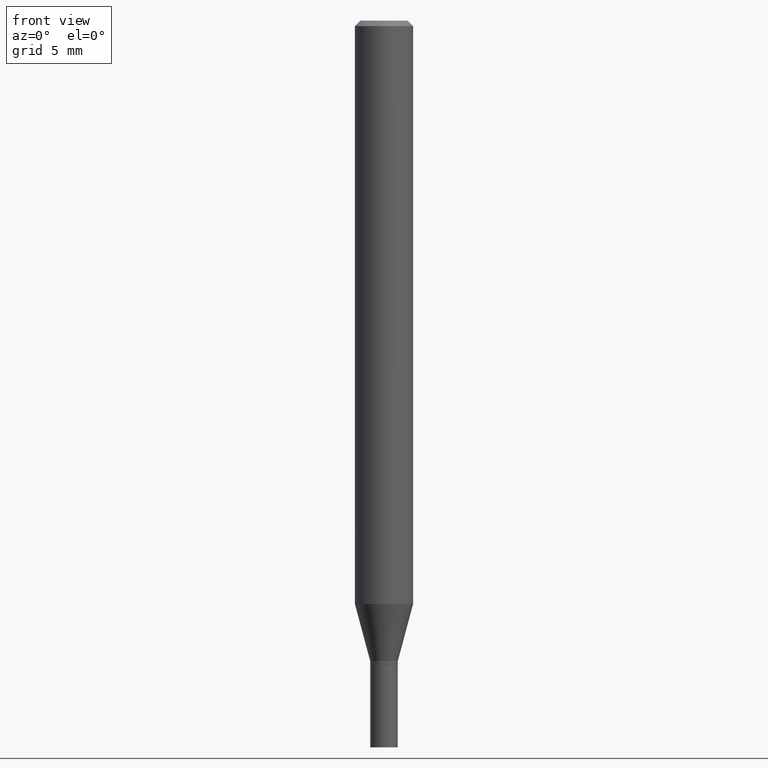
[diagram: clean part render]
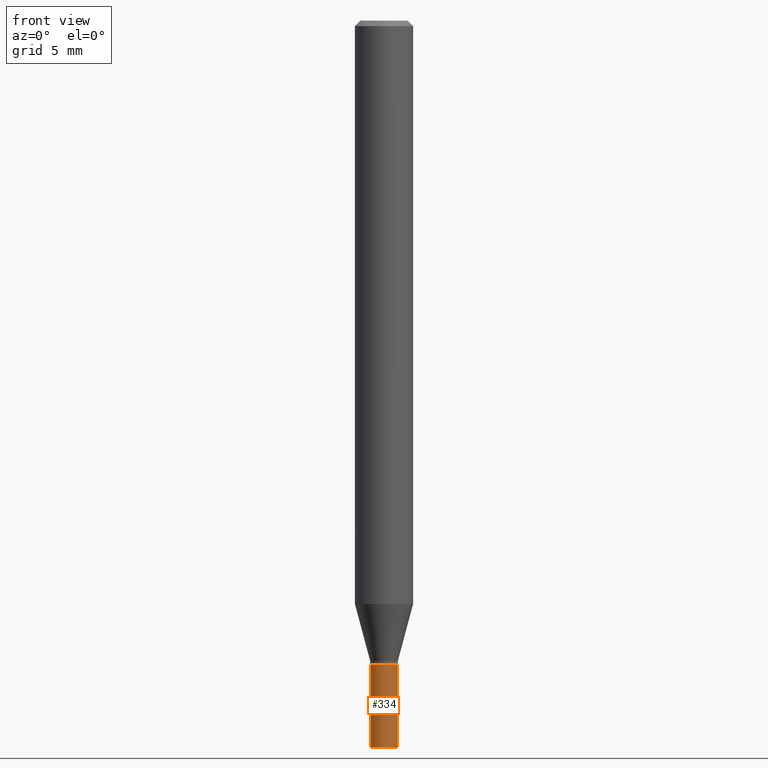
[diagram: same view with one face highlighted and labeled with its STEP entity id]
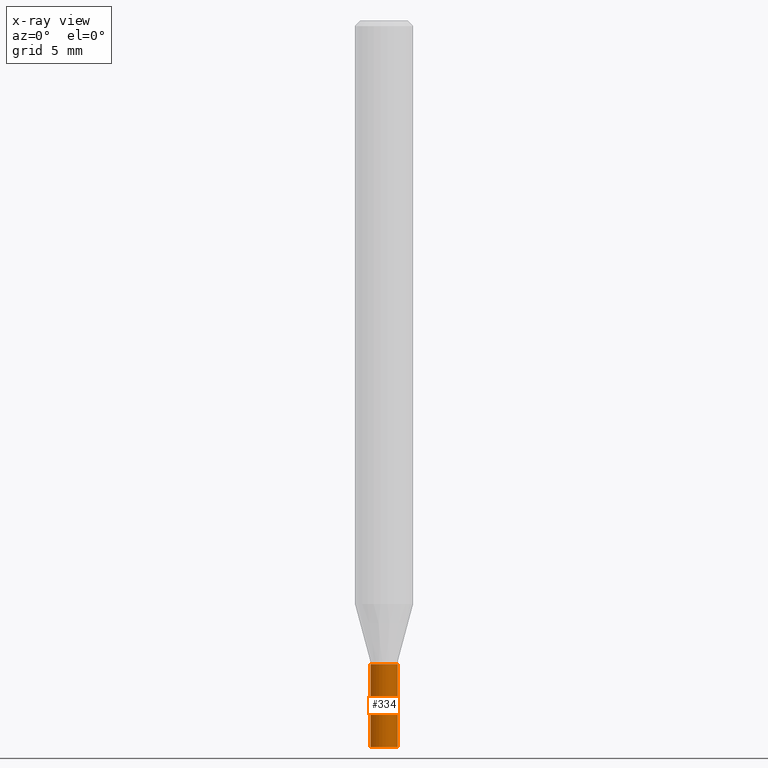
[diagram: x-ray of the same camera — body ghosted, the highlighted face saturated]
A machine part, front view. The second image highlights one B-rep face of the part: STEP entity #334.
The next image is the same camera in x-ray: the body ghosted, the highlighted face saturated — about 0% of this face is hidden behind the body in this view.
In plain terms, the highlighted cylindrical surface (edge-blend (fillet) strip) has radius 0.95 mm, axis along (-0, 0, 1).
Its self-contained STEP definition (entity closure, byte-faithful):
#24 = CARTESIAN_POINT ( 'NONE',  ( -0.03740000000000000269, -6.215493826120253928E-15, -1.744100000000000206 ) ) ;
#27 = AXIS2_PLACEMENT_3D ( 'NONE', #197, #58, #311 ) ;
#32 = ORIENTED_EDGE ( 'NONE', *, *, #375, .T. ) ;
#53 = DIRECTION ( 'NONE',  ( 1.000000000000000000, -6.982962677686274599E-15, 0.000000000000000000 ) ) ;
#58 = DIRECTION ( 'NONE',  ( -2.445468806185136597E-29, 3.491481338843145583E-15, 1.000000000000000000 ) ) ;
#68 = CARTESIAN_POINT ( 'NONE',  ( 0.03740000000000000269, -2.611628041454664002E-16, 1.823690114147680082E-30 ) ) ;
#86 = CARTESIAN_POINT ( 'NONE',  ( 4.813905344975441835E-29, -6.872981015512731707E-15, -1.968500000000000139 ) ) ;
#89 = CARTESIAN_POINT ( 'NONE',  ( -0.03740000000000000269, 2.657429831742774886E-16, -1.839681723755335040E-30 ) ) ;
#92 = DIRECTION ( 'NONE',  ( -2.445468806185136597E-29, 3.491481338843145583E-15, 1.000000000000000000 ) ) ;
#93 = CYLINDRICAL_SURFACE ( 'NONE', #27, 0.03740000000000000269 ) ;
#131 = LINE ( 'NONE', #68, #228 ) ;
#134 = CARTESIAN_POINT ( 'NONE',  ( -0.03740000000000000269, -6.215493826120253928E-15, -1.968500000000000139 ) ) ;
#135 = VERTEX_POINT ( 'NONE', #175 ) ;
#160 = CIRCLE ( 'NONE', #404, 0.03740000000000000269 ) ;
#175 = CARTESIAN_POINT ( 'NONE',  ( 0.03740000000000000269, -6.350655407221797329E-15, -1.744100000000000206 ) ) ;
#190 = DIRECTION ( 'NONE',  ( -2.445468806185136877E-29, 3.491481338843145188E-15, 1.000000000000000000 ) ) ;
#193 = CARTESIAN_POINT ( 'NONE',  ( 4.265142144867497014E-29, -6.089492603076330929E-15, -1.744100000000000206 ) ) ;
#197 = CARTESIAN_POINT ( 'NONE',  ( 0.000000000000000000, 0.000000000000000000, 0.000000000000000000 ) ) ;
#200 = EDGE_CURVE ( 'NONE', #322, #403, #227, .T. ) ;
#227 = LINE ( 'NONE', #89, #253 ) ;
#228 = VECTOR ( 'NONE', #315, 39.37007874015748143 ) ;
#232 = ORIENTED_EDGE ( 'NONE', *, *, #394, .F. ) ;
#236 = FACE_OUTER_BOUND ( 'NONE', #396, .T. ) ;
#238 = EDGE_CURVE ( 'NONE', #322, #448, #160, .T. ) ;
#253 = VECTOR ( 'NONE', #190, 39.37007874015748143 ) ;
#264 = ORIENTED_EDGE ( 'NONE', *, *, #200, .F. ) ;
#272 = CARTESIAN_POINT ( 'NONE',  ( 0.03740000000000000269, -7.134143819658198107E-15, -1.968500000000000139 ) ) ;
#277 = DIRECTION ( 'NONE',  ( -2.445468806185136597E-29, 3.491481338843145583E-15, 1.000000000000000000 ) ) ;
#284 = ORIENTED_EDGE ( 'NONE', *, *, #238, .T. ) ;
#311 = DIRECTION ( 'NONE',  ( 1.000000000000000000, -6.982962677686266711E-15, 4.876176775795935793E-29 ) ) ;
#315 = DIRECTION ( 'NONE',  ( -2.445468806185136877E-29, 3.491481338843145188E-15, 1.000000000000000000 ) ) ;
#322 = VERTEX_POINT ( 'NONE', #134 ) ;
#334 = ADVANCED_FACE ( 'NONE', ( #236 ), #93, .T. ) ;
#375 = EDGE_CURVE ( 'NONE', #448, #135, #131, .T. ) ;
#394 = EDGE_CURVE ( 'NONE', #403, #135, #419, .T. ) ;
#396 = EDGE_LOOP ( 'NONE', ( #264, #284, #32, #232 ) ) ;
#403 = VERTEX_POINT ( 'NONE', #24 ) ;
#404 = AXIS2_PLACEMENT_3D ( 'NONE', #86, #92, #53 ) ;
#419 = CIRCLE ( 'NONE', #435, 0.03740000000000000269 ) ;
#435 = AXIS2_PLACEMENT_3D ( 'NONE', #193, #277, #464 ) ;
#448 = VERTEX_POINT ( 'NONE', #272 ) ;
#464 = DIRECTION ( 'NONE',  ( 1.000000000000000000, -6.982962677686274599E-15, 0.000000000000000000 ) ) ;